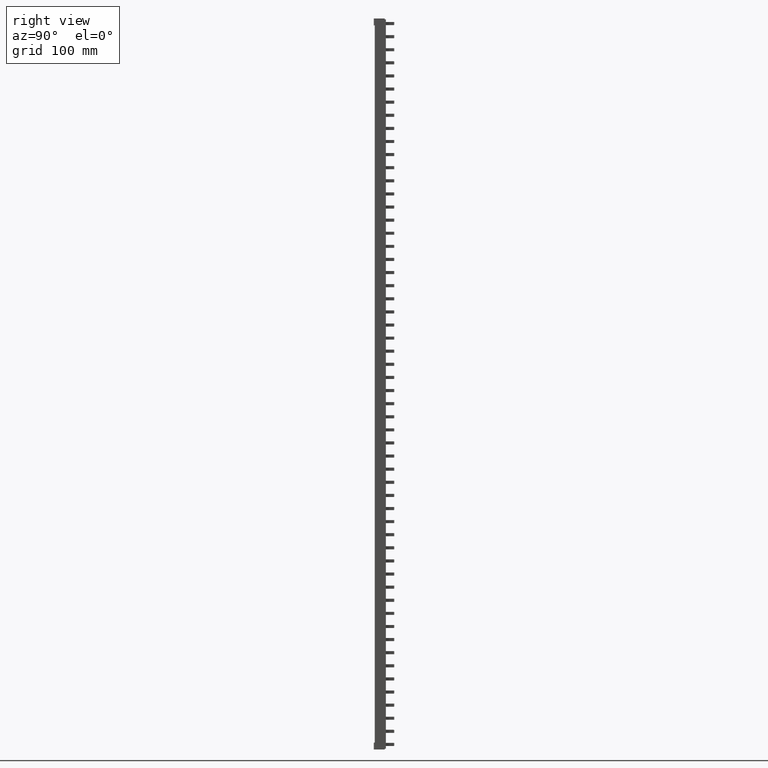
[diagram: clean part render]
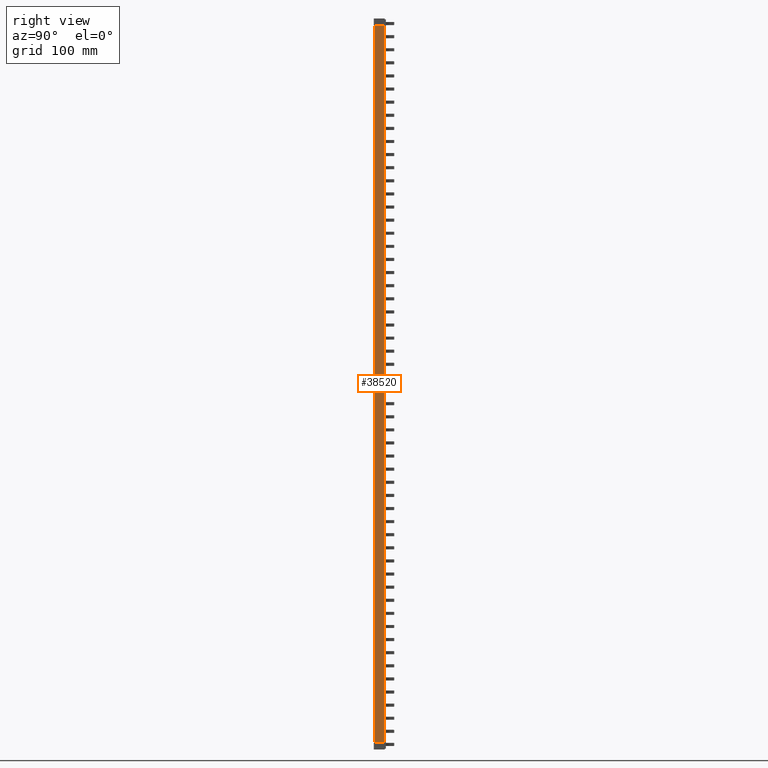
[diagram: same view with one face highlighted and labeled with its STEP entity id]
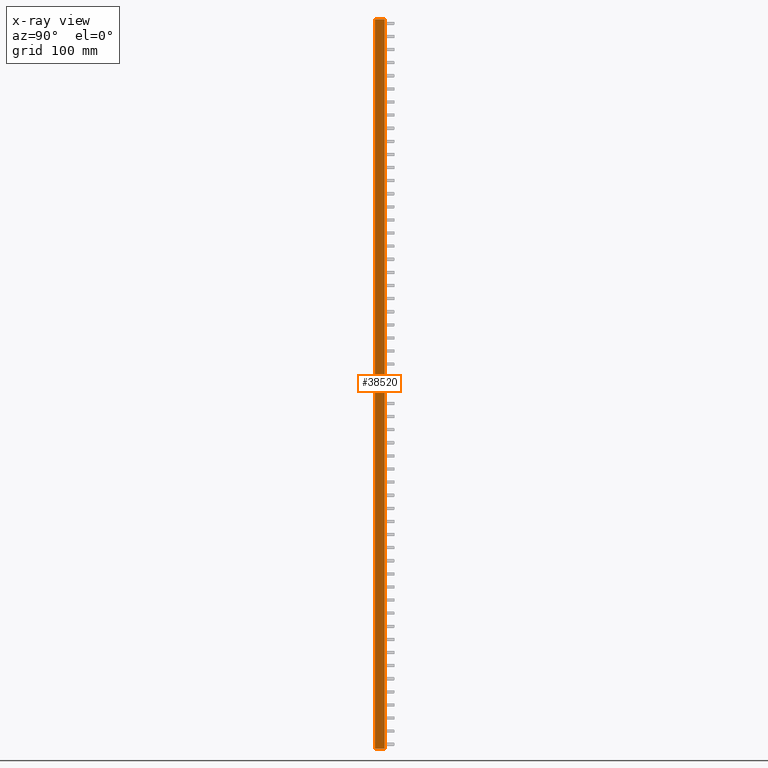
[diagram: x-ray of the same camera — body ghosted, the highlighted face saturated]
A machine part, right view. The second image highlights one B-rep face of the part: STEP entity #38520.
The next image is the same camera in x-ray: the body ghosted, the highlighted face saturated — about 0% of this face is hidden behind the body in this view.
In plain terms, the highlighted planar face has unit normal (1, -0, 0).
Its self-contained STEP definition (entity closure, byte-faithful):
#2853 = EDGE_CURVE ( 'NONE', #24076, #24071, #46955, .T. ) ;
#2917 = EDGE_CURVE ( 'NONE', #24050, #24076, #31831, .T. ) ;
#3077 = EDGE_CURVE ( 'NONE', #24100, #24057, #46365, .T. ) ;
#3089 = EDGE_CURVE ( 'NONE', #24057, #24098, #31814, .T. ) ;
#3145 = EDGE_CURVE ( 'NONE', #24071, #24100, #32586, .T. ) ;
#3216 = EDGE_CURVE ( 'NONE', #24050, #24098, #32705, .T. ) ;
#16986 = EDGE_LOOP ( 'NONE', ( #22701, #22651, #22709, #22695, #22652, #22735 ) ) ;
#22651 = ORIENTED_EDGE ( 'NONE', *, *, #3077, .T. ) ;
#22652 = ORIENTED_EDGE ( 'NONE', *, *, #2917, .T. ) ;
#22695 = ORIENTED_EDGE ( 'NONE', *, *, #3216, .F. ) ;
#22701 = ORIENTED_EDGE ( 'NONE', *, *, #3145, .T. ) ;
#22709 = ORIENTED_EDGE ( 'NONE', *, *, #3089, .T. ) ;
#22735 = ORIENTED_EDGE ( 'NONE', *, *, #2853, .T. ) ;
#24050 = VERTEX_POINT ( 'NONE', #80270 ) ;
#24057 = VERTEX_POINT ( 'NONE', #80394 ) ;
#24071 = VERTEX_POINT ( 'NONE', #80422 ) ;
#24076 = VERTEX_POINT ( 'NONE', #80390 ) ;
#24098 = VERTEX_POINT ( 'NONE', #80404 ) ;
#24100 = VERTEX_POINT ( 'NONE', #80406 ) ;
#31814 = B_SPLINE_CURVE_WITH_KNOTS ( 'NONE', 3,
 ( #46344, #46368, #46352, #46351 ),
 .UNSPECIFIED., .F., .F.,
 ( 4, 4 ),
 ( 1.755221673300361200E-017, 1.270203467697746200E-005 ),
 .UNSPECIFIED. ) ;
#31831 = B_SPLINE_CURVE_WITH_KNOTS ( 'NONE', 3,
 ( #47066, #47082, #47058, #47068 ),
 .UNSPECIFIED., .F., .F.,
 ( 4, 4 ),
 ( 2.228579739512284600E-017, 1.270203591701248200E-005 ),
 .UNSPECIFIED. ) ;
#32586 = LINE ( 'NONE', #32641, #66680 ) ;
#32641 = CARTESIAN_POINT ( 'NONE',  ( 9.599999999999830900, 13.49999999999998400, -772.2000000000000500 ) ) ;
#32653 = DIRECTION ( 'NONE',  ( -0.0000000000000000000, -0.0000000000000000000, 1.000000000000000000 ) ) ;
#32686 = CARTESIAN_POINT ( 'NONE',  ( 9.599999999999827300, 0.0000000000000000000, 217.7999999999999800 ) ) ;
#32699 = DIRECTION ( 'NONE',  ( -0.0000000000000000000, 0.0000000000000000000, 1.000000000000000000 ) ) ;
#32705 = LINE ( 'NONE', #32686, #66741 ) ;
#35540 = AXIS2_PLACEMENT_3D ( 'NONE', #49718, #49741, #49719 ) ;
#38520 = ADVANCED_FACE ( 'NONE', ( #49717 ), #49760, .T. ) ;
#46328 = CARTESIAN_POINT ( 'NONE',  ( 9.599999999999830900, 0.0000000000000000000, 217.7999999999934200 ) ) ;
#46332 = DIRECTION ( 'NONE',  ( -0.0000000000000000000, -1.000000000000000000, -0.0000000000000000000 ) ) ;
#46344 = CARTESIAN_POINT ( 'NONE',  ( 9.599999999999830900, 0.01270166487674905100, 217.7999999999933900 ) ) ;
#46351 = CARTESIAN_POINT ( 'NONE',  ( 9.599999999999829100, -3.526380721767800200E-014, 217.7999030758346100 ) ) ;
#46352 = CARTESIAN_POINT ( 'NONE',  ( 9.599999999999830900, 0.004233506201402367600, 217.7999684908471900 ) ) ;
#46365 = LINE ( 'NONE', #46328, #66675 ) ;
#46368 = CARTESIAN_POINT ( 'NONE',  ( 9.599999999999830900, 0.008467653317762573500, 217.7999999999933600 ) ) ;
#46933 = CARTESIAN_POINT ( 'NONE',  ( 9.599999999999830900, 0.0000000000000000000, -769.8000000000054100 ) ) ;
#46937 = DIRECTION ( 'NONE',  ( 0.0000000000000000000, 1.000000000000000000, 0.0000000000000000000 ) ) ;
#46955 = LINE ( 'NONE', #46933, #66512 ) ;
#47058 = CARTESIAN_POINT ( 'NONE',  ( 9.599999999999830900, 0.008467654145003476000, -769.8000000000065500 ) ) ;
#47066 = CARTESIAN_POINT ( 'NONE',  ( 9.599999999999829100, -2.378715131874400500E-014, -769.7999030758292100 ) ) ;
#47068 = CARTESIAN_POINT ( 'NONE',  ( 9.599999999999830900, 0.01270166611668516900, -769.8000000000065500 ) ) ;
#47082 = CARTESIAN_POINT ( 'NONE',  ( 9.599999999999830900, 0.004233506614941547100, -769.7999684908545500 ) ) ;
#49717 = FACE_OUTER_BOUND ( 'NONE', #16986, .T. ) ;
#49718 = CARTESIAN_POINT ( 'NONE',  ( 9.599999999999830900, 0.0000000000000000000, -772.2000000000000500 ) ) ;
#49719 = DIRECTION ( 'NONE',  ( 0.0000000000000000000, 0.0000000000000000000, -1.000000000000000000 ) ) ;
#49741 = DIRECTION ( 'NONE',  ( 1.000000000000000000, -0.0000000000000000000, 0.0000000000000000000 ) ) ;
#49760 = PLANE ( 'NONE',  #35540 ) ;
#66512 = VECTOR ( 'NONE', #46937, 1000.000000000000000 ) ;
#66675 = VECTOR ( 'NONE', #46332, 1000.000000000000000 ) ;
#66680 = VECTOR ( 'NONE', #32653, 1000.000000000000000 ) ;
#66741 = VECTOR ( 'NONE', #32699, 1000.000000000000000 ) ;
#80270 = CARTESIAN_POINT ( 'NONE',  ( 9.599999999999829100, -2.378715131874400500E-014, -769.7999030758292100 ) ) ;
#80390 = CARTESIAN_POINT ( 'NONE',  ( 9.599999999999830900, 0.01270166611668516900, -769.8000000000065500 ) ) ;
#80394 = CARTESIAN_POINT ( 'NONE',  ( 9.599999999999830900, 0.01270166487674905100, 217.7999999999933900 ) ) ;
#80404 = CARTESIAN_POINT ( 'NONE',  ( 9.599999999999829100, -3.526380721767800200E-014, 217.7999030758346100 ) ) ;
#80406 = CARTESIAN_POINT ( 'NONE',  ( 9.599999999999830900, 13.49999999999998400, 217.7999999999934200 ) ) ;
#80422 = CARTESIAN_POINT ( 'NONE',  ( 9.599999999999830900, 13.49999999999998400, -769.8000000000057500 ) ) ;